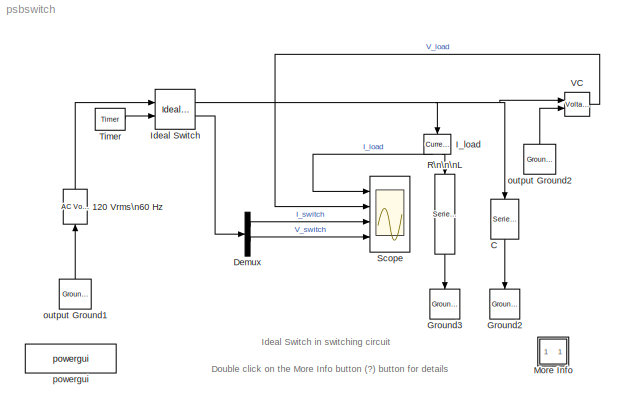
MODEL psbswitch
KIND model
BLOCK [Reference] 120 Vrms\n60 Hz  REF=powerlib2/Electrical\nSources/AC Voltage Source
  A = 120*sqrt(2)
  F = 60
  P = 0
  PSBOutputType = 1
  Ports = [1, 1]
  SourceBlock = powerlib2/Electrical\nSources/AC Voltage Source
  SourceType = AC Voltage Source
  Tag = PoWeRsYsTeMbLoCk
  mesure = None
  stime = 0
BLOCK [Reference] C  REF=powerlib2/Elements/Series RLC Branch
  PSBOutputType = 1
  Ports = [1, 1]
  SourceBlock = powerlib2/Elements/Series RLC Branch
  SourceType = Series RLC Branch
  Tag = PoWeRsYsTeMbLoCk
  a = 0
  b = 0
  c = 10e-6
  mesure = None
BLOCK [Demux] Demux
  Outputs = 2
  Ports = [1, 2]
BLOCK [Reference] Ground2  REF=powerlib2/Connectors/Ground (input)
  Ports = [1]
  SourceBlock = powerlib2/Connectors/Ground (input)
  SourceType = Ground
  Tag = PoWeRsYsTeMbLoCk
BLOCK [Reference] Ground3  REF=powerlib2/Connectors/Ground (input)
  Ports = [1]
  SourceBlock = powerlib2/Connectors/Ground (input)
  SourceType = Ground
  Tag = PoWeRsYsTeMbLoCk
BLOCK [Reference] I_load  REF=powerlib2/Measurements/Current Measurement
  OutputType = Magnitude
  PSBOutputType = 01
  PSBequivalent = 0
  PhasorSimulation = off
  Ports = [1, 2]
  SourceBlock = powerlib2/Measurements/Current Measurement
  SourceType = Current Measurement
  Tag = PoWeRsYsTeMmEaSuReMeNt
BLOCK [Reference] Ideal Switch  REF=powerlib2/Power\nElectronics/Ideal Switch
  Cs = 0.1e-6
  IC = 1
  Lon = 1e-9
  PSBOutputType = 10
  Ports = [2, 2]
  Ron = 0.01
  Rs = inf
  SourceBlock = powerlib2/Power\nElectronics/Ideal Switch
  SourceType = Ideal Switch
  Tag = PoWeRsYsTeMbLoCk
BLOCK [SubSystem] More Info
  MaskDisplay = disp('?')
  MaskIconFrame = on
  MaskIconOpaque = on
  MaskIconRotate = none
  MaskIconUnits = autoscale
  MinAlgLoopOccurrences = off
  Ports = []
  RTWSystemCode = Auto
  TreatAsAtomicUnit = off
BLOCK [Reference] R\n\n\nL  REF=powerlib2/Elements/Series RLC Branch
  PSBOutputType = 1
  Ports = [1, 1]
  SourceBlock = powerlib2/Elements/Series RLC Branch
  SourceType = Series RLC Branch
  Tag = PoWeRsYsTeMbLoCk
  a = 10
  b = .1
  c = inf
  mesure = None
BLOCK [Scope] Scope
  DataFormat = Array
  LimitDataPoints = off
  NumInputPorts = 4
  Ports = [4]
  TimeRange = 0.2
  YMax = 15~1500~10.18706564613074~2000
  YMin = -20~-1500~-10.20144628099172~-2000
  ZoomMode = yonly
BLOCK [Reference] Timer  REF=powerlib_extras/Control \nBlocks/Timer
  Ports = [0, 1]
  SourceBlock = powerlib_extras/Control \nBlocks/Timer
  SourceType = Timer
  e = [1 0 1]
  t = [0 3/60  8.25/60 ]
BLOCK [Reference] VC  REF=powerlib2/Measurements/Voltage Measurement
  OutputType = Magnitude
  PSBOutputType = 0
  PSBequivalent = 0
  PhasorSimulation = off
  Ports = [2, 1]
  SourceBlock = powerlib2/Measurements/Voltage Measurement
  SourceType = Voltage Measurement
  Tag = PoWeRsYsTeMmEaSuReMeNt
BLOCK [Reference] output Ground1  REF=powerlib2/Connectors/Ground (output)
  PSBOutputType = 1
  Ports = [0, 1]
  SourceBlock = powerlib2/Connectors/Ground (output)
  SourceType = Ground
  Tag = PoWeRsYsTeMbLoCk
BLOCK [Reference] output Ground2  REF=powerlib2/Connectors/Ground (output)
  PSBOutputType = 1
  Ports = [0, 1]
  SourceBlock = powerlib2/Connectors/Ground (output)
  SourceType = Ground
  Tag = PoWeRsYsTeMbLoCk
BLOCK [Reference] powergui  REF=powerlib2/powergui
  DisplayStyle = off
  Frange = logspace(0,3,50)
  FreqAxis = off
  MaxFrequency = 1000
  Ports = []
  RmsSteady = 1
  SourceBlock = powerlib2/powergui
  SourceType = PSB option menu block
  StartTime = 0.0
  Ts = 0
  Xlog = off
  Ylog = off
  ZoomFFT = on
  cycles = 1
  display = off
  echomessages = off
  frequency = 60
  frequencyindice = 1
  frequencyindicesteady = 1
  fundamental = 60
  methode = off
  save = off
  variable = ZData
ANNOTATION (root): Double click on the More Info button (?) button for details
ANNOTATION (root): Ideal Switch in switching circuit
ANNOTATION More Info: This example illustrates the use of the Ideal Switch\n____________________________________________
ANNOTATION More Info: Observe that current chopping produces a load overvoltage at switch opening.\nAlso observe high switch curent spike when the capacitive circuit is re-energized at maximum source voltage.
ANNOTATION More Info: The Ideal Switch is used to switch an RLC load on a 120V rms, 60 Hz voltage source. \nThe switch is initially closed. \nIt is turned off at t = 3 cycles (50 ms), then it is reclosed at t = 8.25 cycles (138 ms).
LINE 120 Vrms\n60 Hz:1 -> Ideal Switch:1
LINE C:1 -> Ground2:1
LINE Demux:1 -> Scope:3
LINE Demux:2 -> Scope:4
LINE I_load:1 -> Scope:1
LINE I_load:2 -> R\n\n\nL:1
NET Ideal Switch:1 -> C:1, I_load:1, VC:1
LINE Ideal Switch:2 -> Demux:1
LINE R\n\n\nL:1 -> Ground3:1
LINE Timer:1 -> Ideal Switch:2
LINE VC:1 -> Scope:2
LINE output Ground1:1 -> 120 Vrms\n60 Hz:1
LINE output Ground2:1 -> VC:2
note: NET lines group one-source signal fan-out (src -> all destinations, sorted); 1:1 wires keep LINE
